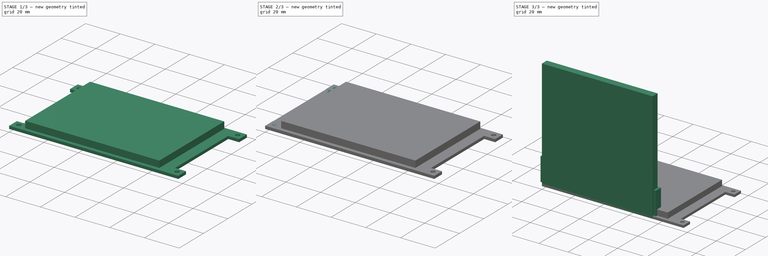
[diagram: build sequence overview — one tinted view per stage of 3, left to right]
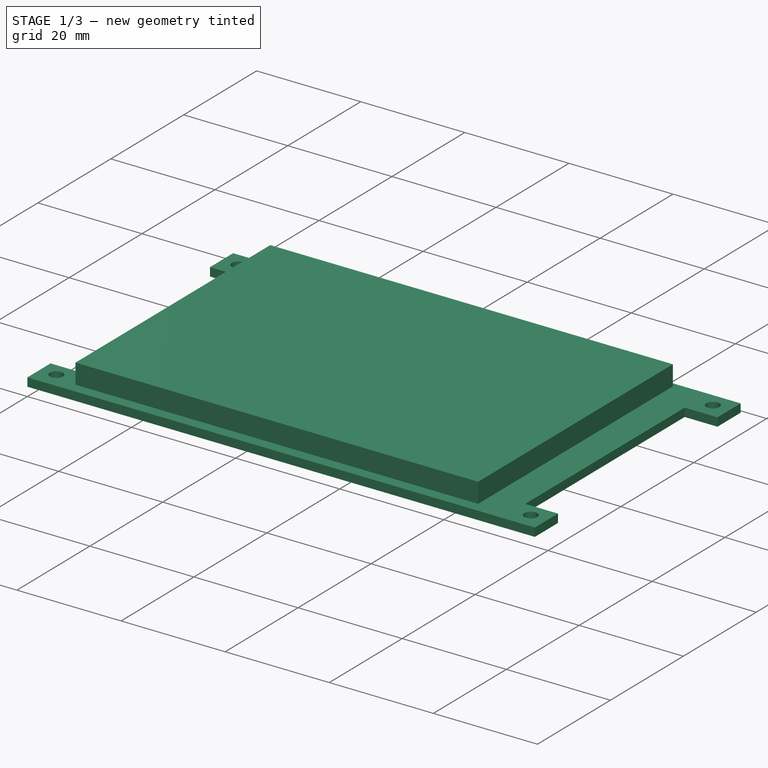
[diagram: stage 1 of 3 — iso view after this stage's code; geometry added in this stage tinted green]
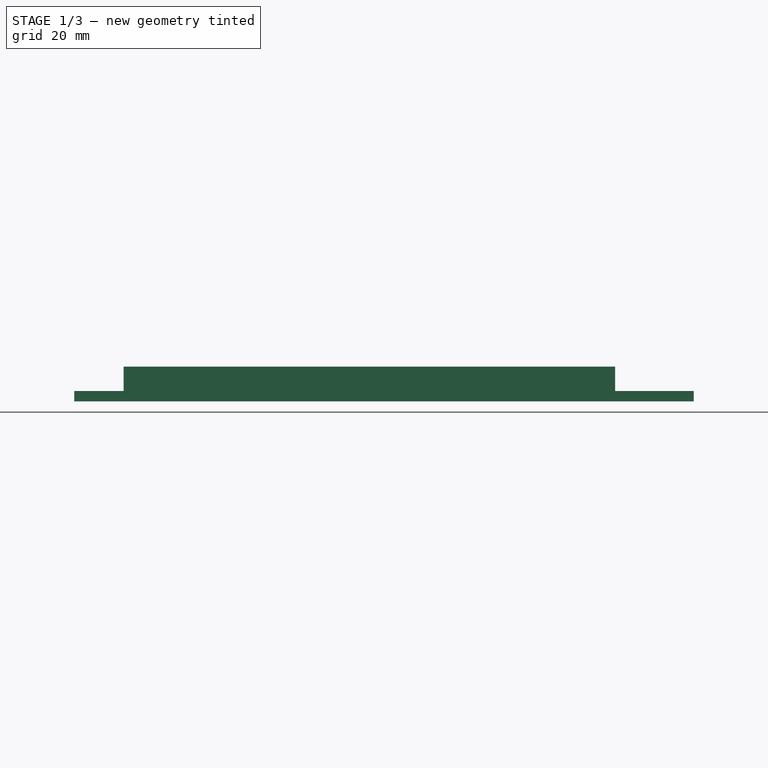
[diagram: stage 1 of 3 — front view after this stage's code; geometry added in this stage tinted green]
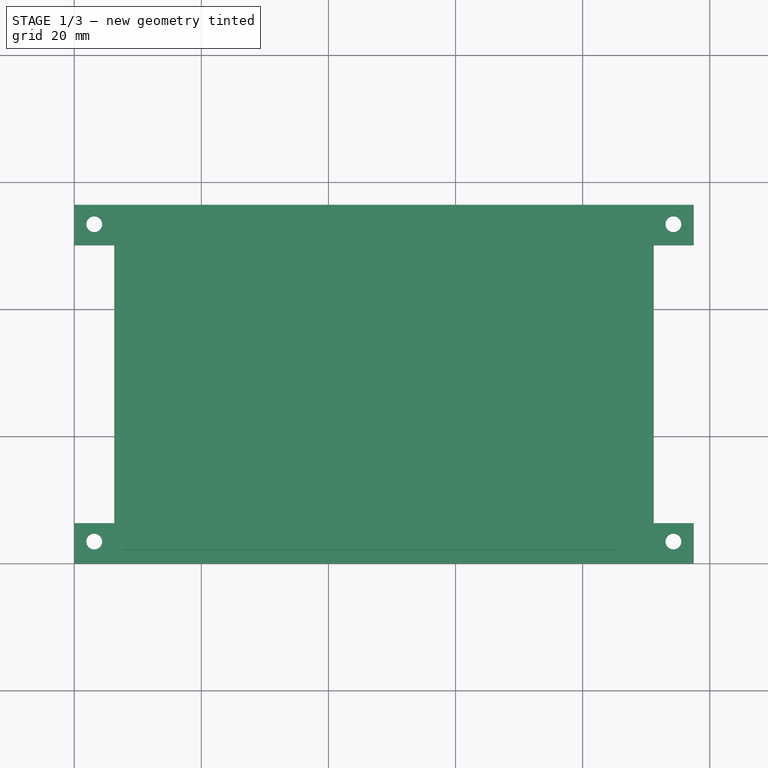
[diagram: stage 1 of 3 — top view after this stage's code; geometry added in this stage tinted green]
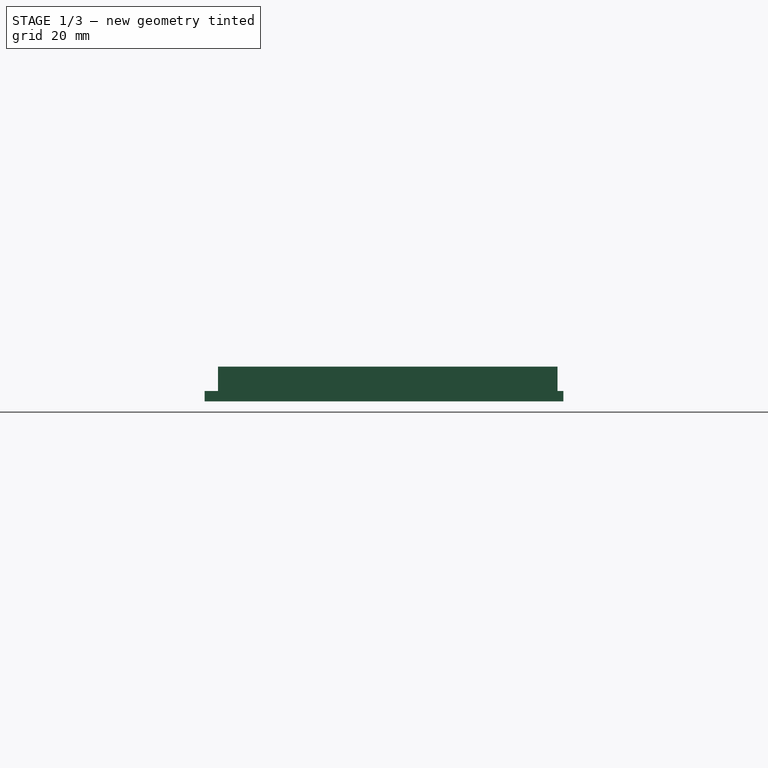
[diagram: stage 1 of 3 — right view after this stage's code; geometry added in this stage tinted green]
FCSTD DOCUMENT  (FreeCAD 0.16R6712 (Git))
Label: RasPiBox
License: All rights reserved
LicenseURL: http://en.wikipedia.org/wiki/All_rights_reserved
objects: Sketcher::SketchObject×4, PartDesign::Pad×4, Part::Box×1
note: 13 computed .brp shape members not serialized (recipe doc carries the construction recipe); baked Part::Feature solids carry a one-line shape summary decoded from their .brp

FEATURE [Sketcher::SketchObject] Sketch002  label="ScreenPCBsketch"
  sketch-geometry (16):
    g0: LineSegment StartX=0 StartY=0 StartZ=0 EndX=97.4852 EndY=0 EndZ=0
    g1: LineSegment StartX=97.4852 StartY=0 StartZ=0 EndX=97.4852 EndY=6.35282 EndZ=0
    g2: LineSegment StartX=97.4852 StartY=6.35282 StartZ=0 EndX=91.186 EndY=6.35282 EndZ=0
    g3: LineSegment StartX=91.186 StartY=6.35282 StartZ=0 EndX=91.186 EndY=50.0916 EndZ=0
    g4: LineSegment StartX=91.186 StartY=50.0916 StartZ=0 EndX=97.4852 EndY=50.0916 EndZ=0
    g5: LineSegment StartX=97.4852 StartY=50.0916 StartZ=0 EndX=97.4852 EndY=56.4444 EndZ=0
    g6: LineSegment StartX=97.4852 StartY=56.4444 StartZ=0 EndX=0 EndY=56.4444 EndZ=0
    g7: LineSegment StartX=0 StartY=56.4444 StartZ=0 EndX=0 EndY=50.0916 EndZ=0
    g8: LineSegment StartX=0 StartY=50.0916 StartZ=0 EndX=6.2992 EndY=50.0916 EndZ=0
    g9: LineSegment StartX=6.2992 StartY=50.0916 StartZ=0 EndX=6.2992 EndY=6.35282 EndZ=0
    g10: LineSegment StartX=6.2992 StartY=6.35282 StartZ=0 EndX=0 EndY=6.35282 EndZ=0
    g11: LineSegment StartX=0 StartY=6.35282 StartZ=0 EndX=0 EndY=0 EndZ=0
    g12: Circle CenterX=94.2848 CenterY=53.3964 CenterZ=0 NormalX=0 NormalY=0 NormalZ=1 Radius=1.2446
    g13: Circle CenterX=94.2848 CenterY=3.46004 CenterZ=0 NormalX=0 NormalY=0 NormalZ=1 Radius=1.2446
    g14: Circle CenterX=3.1496 CenterY=53.3964 CenterZ=0 NormalX=0 NormalY=0 NormalZ=1 Radius=1.2446
    g15: Circle CenterX=3.1496 CenterY=3.46004 CenterZ=0 NormalX=0 NormalY=0 NormalZ=1 Radius=1.2446
  constraints (49):
    c: Horizontal(g0)
    c: Coincident(g0,g1)
    c: Vertical(g1)
    c: Coincident(g1,g2)
    c: Horizontal(g2)
    c: Coincident(g2,g3)
    c: Vertical(g3)
    c: Coincident(g3,g4)
    c: Horizontal(g4)
    c: Coincident(g4,g5)
    c: Vertical(g5)
    c: Coincident(g5,g6)
    c: Horizontal(g6)
    c: Coincident(g6,g7)
    c: Vertical(g7)
    c: Coincident(g7,g8)
    c: Horizontal(g8)
    c: Coincident(g8,g9)
    c: Vertical(g9)
    c: Coincident(g9,g10)
    c: Horizontal(g10)
    c: Coincident(g10,g11)
    c: Coincident(g11,g0)
    c: Vertical(g11)
    c: Equal(g9,g3)
    c: Equal(g5,g1)
    c: Equal(g1,g11)
    c: Equal(g11,g7)
    c: Distance(g3,g8) = 84.8868
    c: Distance(g5,g6) = 97.4852
    c: DistanceY(g0,g5) = 56.4444
    c: Equal(g0,g6)
    c: Equal(g10,g8)
    c: Equal(g8,g4)
    c: Equal(g4,g2)
    c: DistanceY(g1,g4) = 43.7388
    c: Coincident(g0,g-1)
    c: Radius(g12) = 1.2446
    c: Radius(g13) = 1.2446
    c: DistanceY(g13,g12) = 49.9364
    c: Distance(g12,g6) = 3.048
    c: Distance(g12,g5) = 3.2004
    c: Radius(g14) = 1.2446
    c: Radius(g15) = 1.2446
    c: DistanceY(g15,g13) = 0
    c: DistanceY(g12,g14) = 0
    c: DistanceX(g15,g14) = 0
    c: Distance(g14,g7) = 3.1496
    c: DistanceX(g13,g12) = 0
FEATURE [PartDesign::Pad] Pad002
  Length = 1.6256
  Length2 = 100
  Sketch = -> Sketch002
  Type = 0
FEATURE [Sketcher::SketchObject] Sketch003
  Placement = pos=(0,0,1.6256) rot=(0,0,1;0rad)
  Support = -> Pad002 [Face18]
  sketch-geometry (4):
    g0: LineSegment StartX=7.7724 StartY=2.1082 StartZ=0 EndX=85.1154 EndY=2.1082 EndZ=0
    g1: LineSegment StartX=85.1154 StartY=2.1082 StartZ=0 EndX=85.1154 EndY=55.5244 EndZ=0
    g2: LineSegment StartX=85.1154 StartY=55.5244 StartZ=0 EndX=7.7724 EndY=55.5244 EndZ=0
    g3: LineSegment StartX=7.7724 StartY=55.5244 StartZ=0 EndX=7.7724 EndY=2.1082 EndZ=0
  constraints (12):
    c: Coincident(g0,g1)
    c: Coincident(g1,g2)
    c: Coincident(g2,g3)
    c: Coincident(g3,g0)
    c: Horizontal(g0)
    c: Horizontal(g2)
    c: Vertical(g1)
    c: Vertical(g3)
    c: DistanceX(g2,g1) = 77.343
    c: DistanceY(g0,g1) = 53.4162
    c: DistanceX(g-1,g0) = 85.1154
    c: DistanceY(g-1,g1) = 55.5244
FEATURE [PartDesign::Pad] Pad003  label="Screen"
  Length = 3.8354
  Length2 = 100
  Sketch = -> Sketch003
  Type = 0
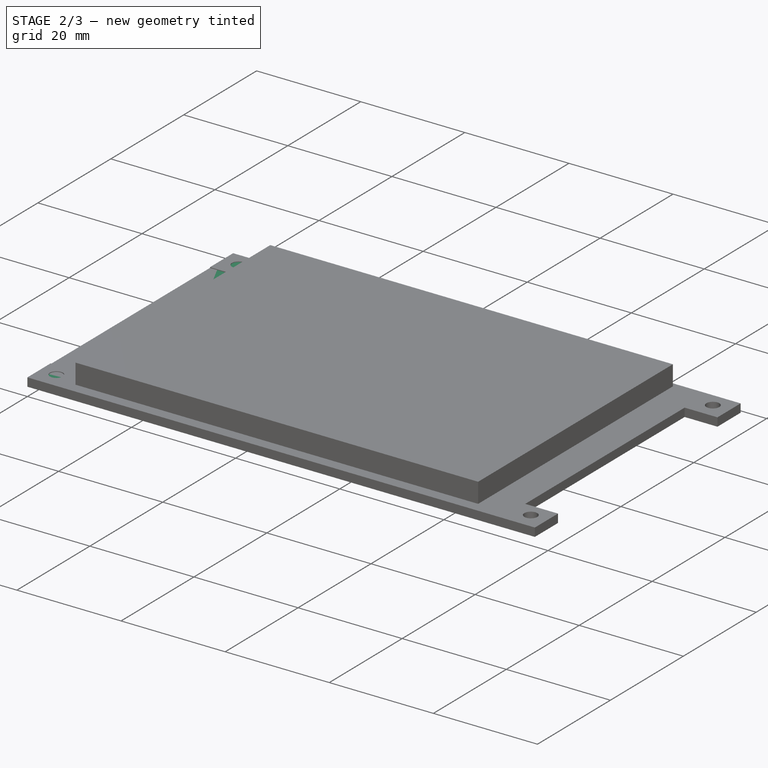
[diagram: stage 2 of 3 — iso view after this stage's code; geometry added in this stage tinted green]
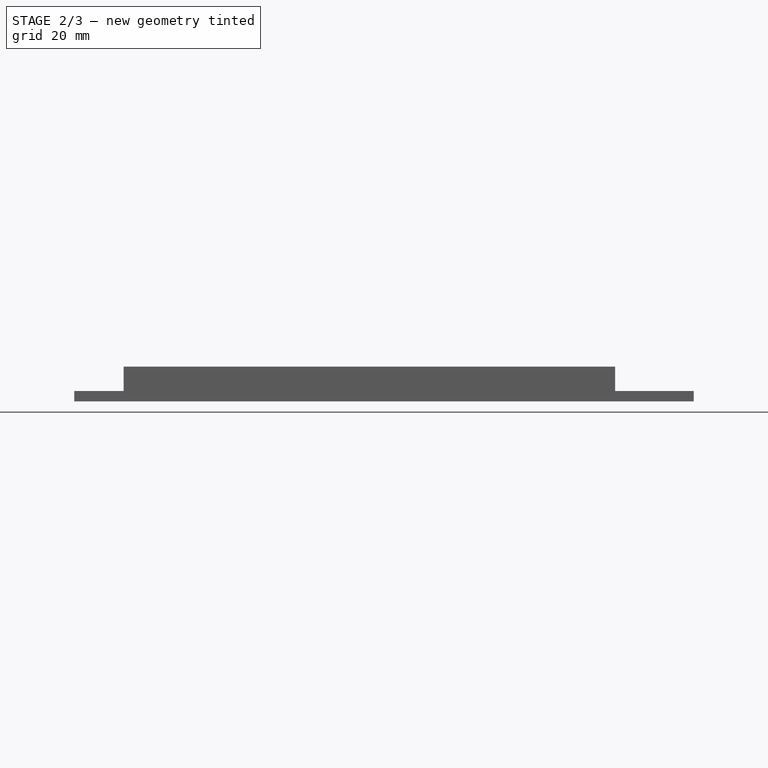
[diagram: stage 2 of 3 — front view after this stage's code; geometry added in this stage tinted green]
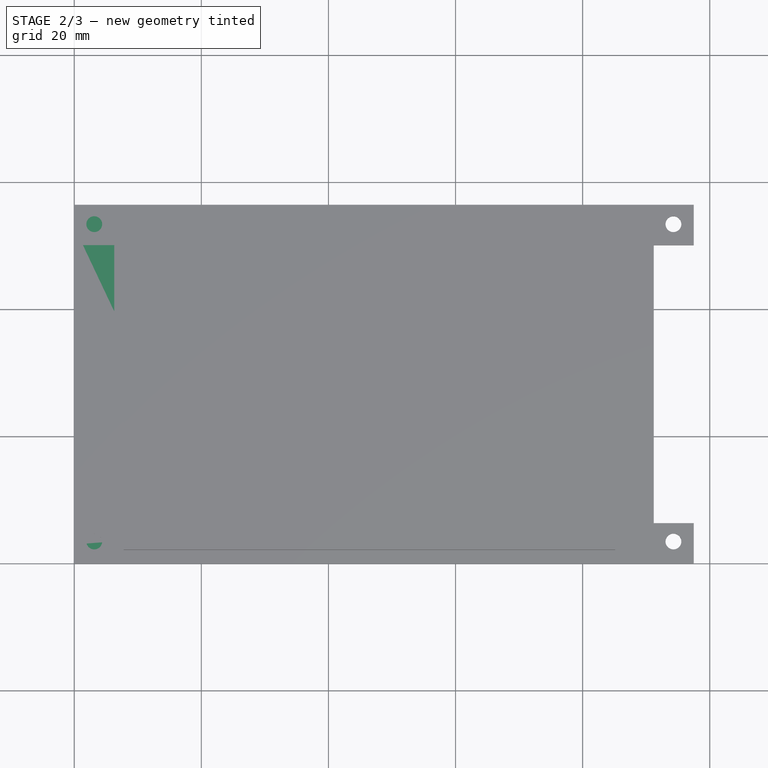
[diagram: stage 2 of 3 — top view after this stage's code; geometry added in this stage tinted green]
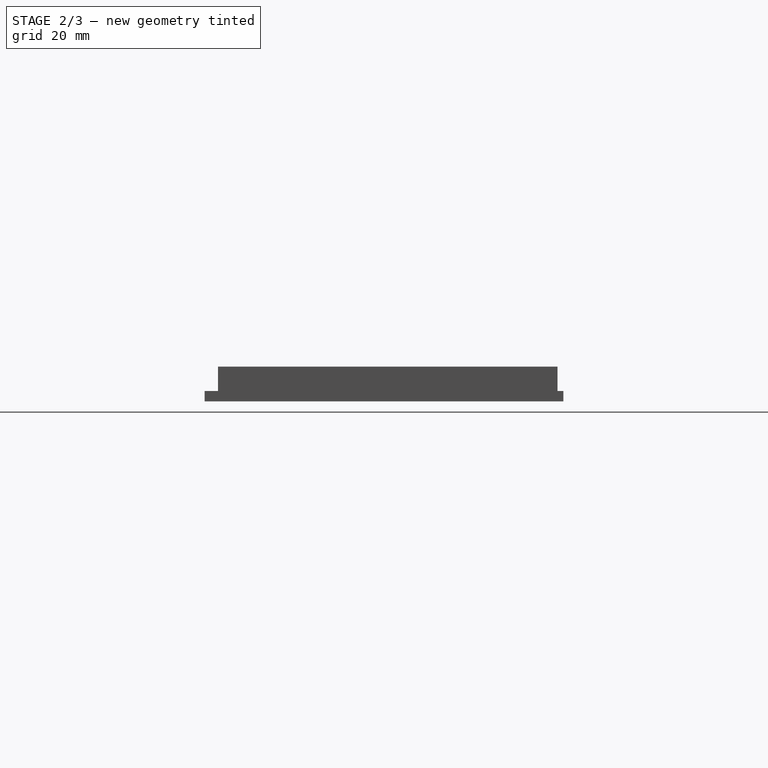
[diagram: stage 2 of 3 — right view after this stage's code; geometry added in this stage tinted green]
FEATURE [Sketcher::SketchObject] Sketch  label="PiSketch"
  sketch-geometry (12):
    g0: LineSegment StartX=3 StartY=0 StartZ=0 EndX=82 EndY=0 EndZ=0
    g1: LineSegment StartX=85 StartY=3 StartZ=0 EndX=85 EndY=53 EndZ=0
    g2: LineSegment StartX=82 StartY=56 StartZ=0 EndX=3 EndY=56 EndZ=0
    g3: LineSegment StartX=0 StartY=53 StartZ=0 EndX=0 EndY=3 EndZ=0
    g4: Circle CenterX=23.5 CenterY=52.5 CenterZ=0 NormalX=0 NormalY=0 NormalZ=1 Radius=1.375
    g5: Circle CenterX=23.5 CenterY=3.5 CenterZ=0 NormalX=0 NormalY=0 NormalZ=1 Radius=1.375
    g6: Circle CenterX=81.5 CenterY=3.5 CenterZ=0 NormalX=0 NormalY=0 NormalZ=1 Radius=1.375
    g7: Circle CenterX=81.5 CenterY=52.5 CenterZ=0 NormalX=0 NormalY=0 NormalZ=1 Radius=1.375
    g8: ArcOfCircle CenterX=3 CenterY=53 CenterZ=0 NormalX=0 NormalY=0 NormalZ=1 Radius=3 StartAngle=1.5708 EndAngle=3.14159
    g9: ArcOfCircle CenterX=3 CenterY=3 CenterZ=0 NormalX=0 NormalY=0 NormalZ=1 Radius=3 StartAngle=3.14159 EndAngle=4.71239
    g10: ArcOfCircle CenterX=82 CenterY=3 CenterZ=0 NormalX=0 NormalY=0 NormalZ=1 Radius=3 StartAngle=4.71239 EndAngle=6.28319
    g11: ArcOfCircle CenterX=82 CenterY=53 CenterZ=0 NormalX=0 NormalY=0 NormalZ=1 Radius=3 StartAngle=0 EndAngle=1.5708
  constraints (33):
    c: Horizontal(g0)
    c: Horizontal(g2)
    c: Vertical(g1)
    c: Vertical(g3)
    c: Tangent(g2,g8) = -1.5708
    c: Tangent(g3,g8) = -1.5708
    c: Tangent(g3,g9) = -1.5708
    c: Tangent(g0,g10) = -1.5708
    c: Tangent(g1,g10) = -1.5708
    c: Tangent(g1,g11) = -1.5708
    c: Tangent(g2,g11) = -1.5708
    c: Radius(g9) = 3
    c: PointOnObject(g0,g-1)
    c: PointOnObject(g3,g-2)
    c: Radius(g8) = 3
    c: Radius(g11) = 3
    c: Radius(g10) = 3
    c: Radius(g4) = 1.375
    c: Radius(g7) = 1.375
    c: Radius(g5) = 1.375
    c: Radius(g6) = 1.375
    c: DistanceX(g3,g1) = 85
    c: DistanceY(g0,g2) = 56
    c: Distance(g7,g1) = 3.5
    c: Distance(g6,g1) = 3.5
    c: Distance(g6,g0) = 3.5
    c: Distance(g5,g0) = 3.5
    c: Distance(g5,g6) = 58
    c: Distance(g4,g7) = 58
    c: Distance(g7,g2) = 3.5
    c: Distance(g4,g2) = 3.5
    c: Coincident(g9,g0)
    c: DistanceX(g-2,g0) = 3
FEATURE [PartDesign::Pad] Pad  label="PiPad"
  Length = 1.5
  Length2 = 100
  Sketch = -> Sketch
  Type = 0
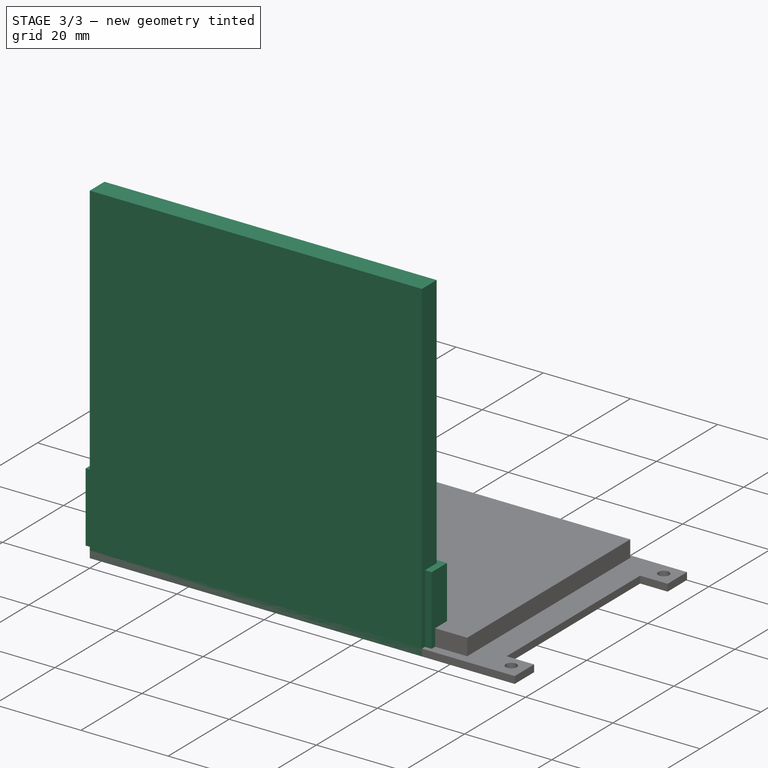
[diagram: stage 3 of 3 — iso view after this stage's code; geometry added in this stage tinted green]
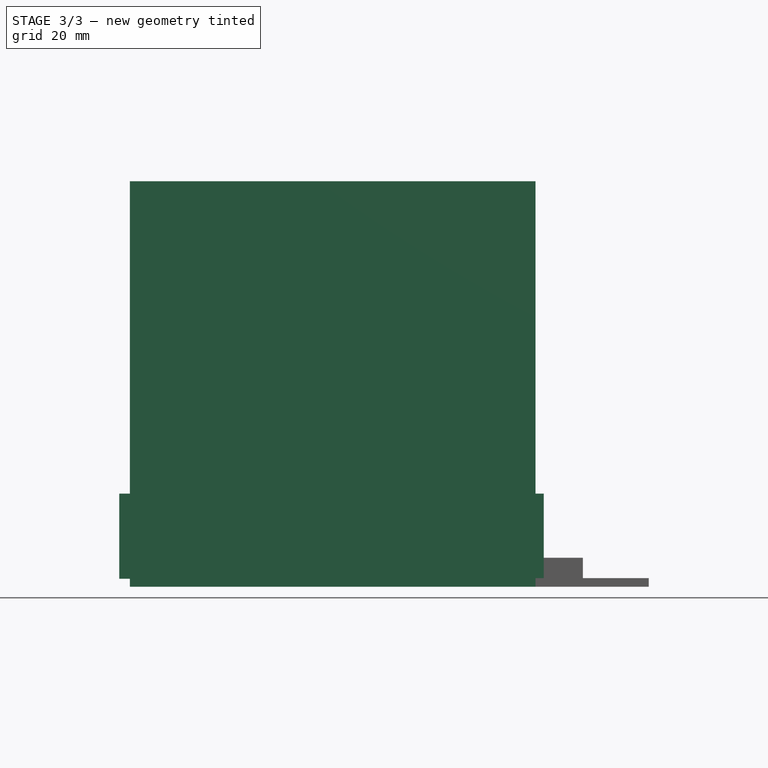
[diagram: stage 3 of 3 — front view after this stage's code; geometry added in this stage tinted green]
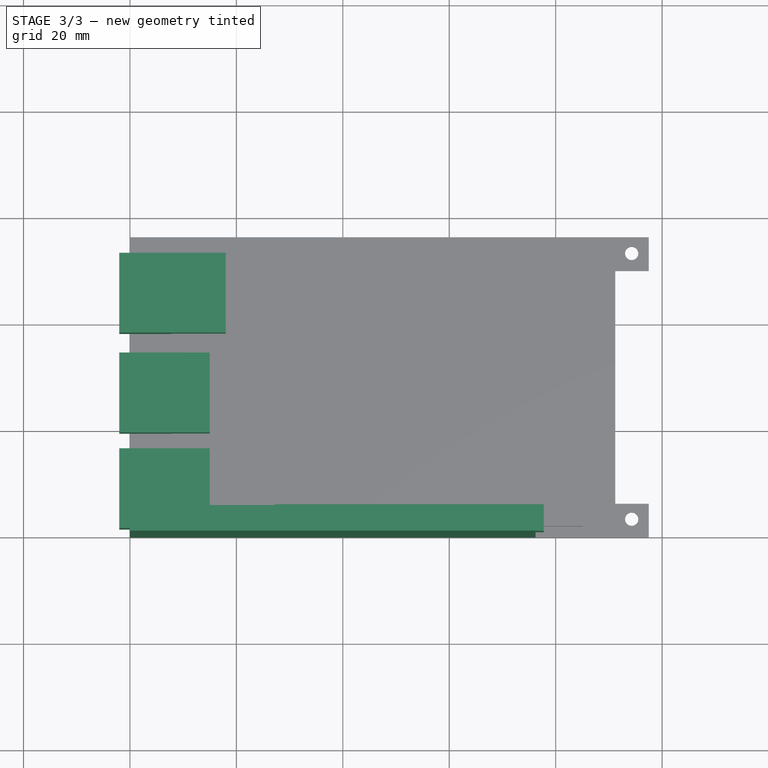
[diagram: stage 3 of 3 — top view after this stage's code; geometry added in this stage tinted green]
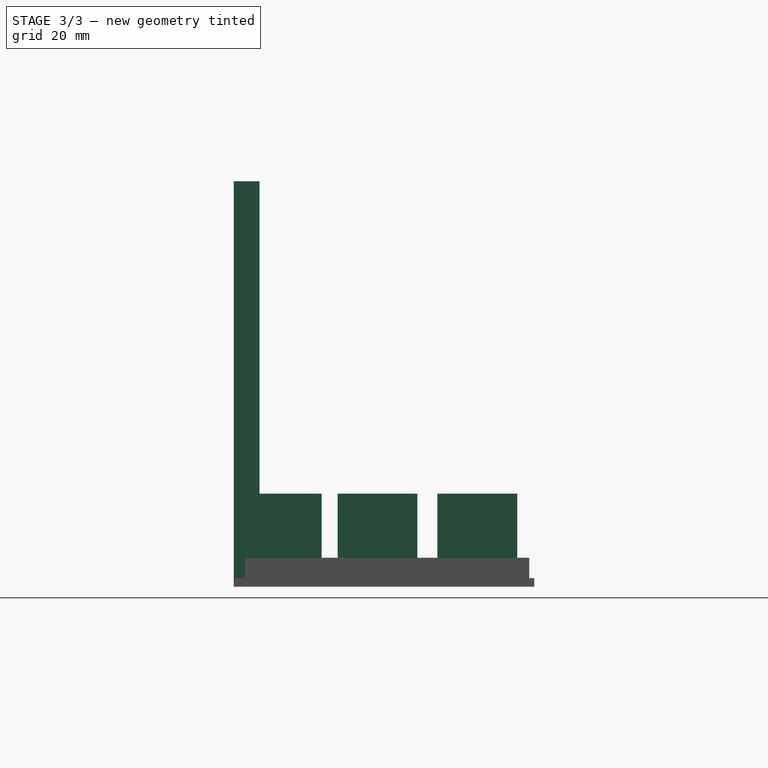
[diagram: stage 3 of 3 — right view after this stage's code; geometry added in this stage tinted green]
FEATURE [Part::Box] Box  label="Cube"
  Height = 76.2
  Length = 76.2
  Width = 4.826
  expr: Width = 0.19"
FEATURE [Sketcher::SketchObject] Sketch001  label="PiPortsSketch"
  Placement = pos=(0,0,1.5) rot=(0,0,1;0rad)
  Support = -> Pad [Face14]
  sketch-geometry (21):
    g0: LineSegment StartX=-2 StartY=38.25 StartZ=0 EndX=18 EndY=38.25 EndZ=0
    g1: LineSegment StartX=18 StartY=38.25 StartZ=0 EndX=18 EndY=53.25 EndZ=0
    g2: LineSegment StartX=18 StartY=53.25 StartZ=0 EndX=-2 EndY=53.25 EndZ=0
    g3: LineSegment StartX=-2 StartY=53.25 StartZ=0 EndX=-2 EndY=38.25 EndZ=0
    g4: GeomPoint [constr] X=18 Y=45.75 Z=0
    g5: LineSegment StartX=-2 StartY=19.5 StartZ=0 EndX=15 EndY=19.5 EndZ=0
    g6: LineSegment StartX=15 StartY=19.5 StartZ=0 EndX=15 EndY=34.5 EndZ=0
    g7: LineSegment StartX=15 StartY=34.5 StartZ=0 EndX=-2 EndY=34.5 EndZ=0
    g8: LineSegment StartX=-2 StartY=34.5 StartZ=0 EndX=-2 EndY=19.5 EndZ=0
    g9: GeomPoint [constr] X=15 Y=27 Z=0
    g10: LineSegment StartX=-2 StartY=1.5 StartZ=0 EndX=15 EndY=1.5 EndZ=0
    g11: LineSegment StartX=15 StartY=1.5 StartZ=0 EndX=15 EndY=16.5 EndZ=0
    g12: LineSegment StartX=15 StartY=16.5 StartZ=0 EndX=-2 EndY=16.5 EndZ=0
    g13: LineSegment StartX=-2 StartY=16.5 StartZ=0 EndX=-2 EndY=1.5 EndZ=0
    g14: GeomPoint [constr] X=15 Y=9 Z=0
    g15: LineSegment StartX=27.25 StartY=1 StartZ=0 EndX=77.75 EndY=1 EndZ=0
    g16: LineSegment StartX=77.75 StartY=1 StartZ=0 EndX=77.75 EndY=6 EndZ=0
    g17: LineSegment StartX=77.75 StartY=6 StartZ=0 EndX=27.25 EndY=6 EndZ=0
    g18: LineSegment StartX=27.25 StartY=6 StartZ=0 EndX=27.25 EndY=1 EndZ=0
    g19: GeomPoint [constr] X=52.5 Y=6 Z=0
    g20: GeomPoint [constr] X=77.75 Y=3.5 Z=0
  constraints (58):
    c: Coincident(g0,g1)
    c: Coincident(g1,g2)
    c: Coincident(g2,g3)
    c: Coincident(g3,g0)
    c: Horizontal(g0)
    c: Horizontal(g2)
    c: Vertical(g1)
    c: Vertical(g3)
    c: PointOnObject(g4,g1)
    c: Symmetric(g0,g1,g4)
    c: DistanceX(g2,g1) = 20
    c: DistanceY(g0,g2) = 15
    c: Coincident(g5,g6)
    c: Coincident(g6,g7)
    c: Coincident(g7,g8)
    c: Coincident(g8,g5)
    c: Horizontal(g5)
    c: Horizontal(g7)
    c: Vertical(g6)
    c: Vertical(g8)
    c: DistanceX(g7,g6) = 17
    c: DistanceX(g2,g5) = 0
    c: DistanceX(g0,g-1) = 2
    c: DistanceY(g5,g6) = 15
    c: PointOnObject(g9,g6)
    c: Symmetric(g5,g6,g9)
    c: Coincident(g10,g11)
    c: Coincident(g11,g12)
    c: Coincident(g12,g13)
    c: Coincident(g13,g10)
    c: Horizontal(g10)
    c: Horizontal(g12)
    c: Vertical(g11)
    c: Vertical(g13)
    c: DistanceX(g12,g11) = 17
    c: DistanceY(g10,g12) = 15
    c: DistanceX(g10,g7) = 0
    c: PointOnObject(g14,g11)
    c: Symmetric(g10,g11,g14)
    c: DistanceY(g-1,g14) = 9
    c: DistanceY(g-1,g9) = 27
    c: DistanceY(g-1,g4) = 45.75
    c: Coincident(g15,g16)
    c: Coincident(g16,g17)
    c: Coincident(g17,g18)
    c: Coincident(g18,g15)
    c: Horizontal(g15)
    c: Horizontal(g17)
    c: Vertical(g16)
    c: Vertical(g18)
    c: DistanceY(g15,g16) = 5
    c: DistanceX(g17,g16) = 50.5
    c: PointOnObject(g19,g17)
    c: Symmetric(g17,g16,g19)
    c: DistanceX(g-2,g19) = 52.5
    c: PointOnObject(g20,g16)
    c: Symmetric(g15,g16,g20)
    c: DistanceY(g-1,g20) = 3.5
FEATURE [PartDesign::Pad] Pad001  label="RasPi"
  Length = 16
  Length2 = 100
  Sketch = -> Sketch001
  Type = 0
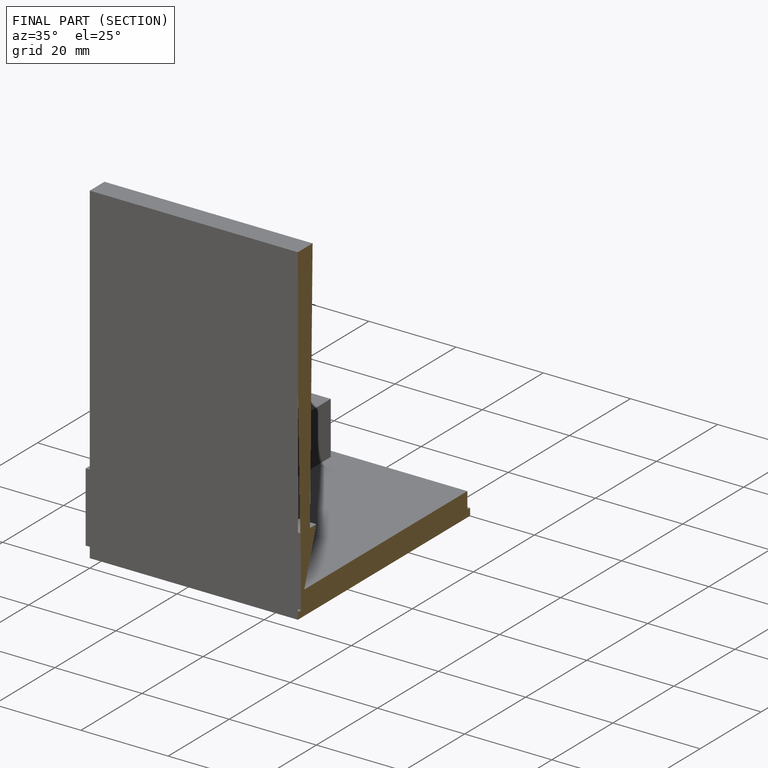
[diagram: finished part — half-section view (interior)]
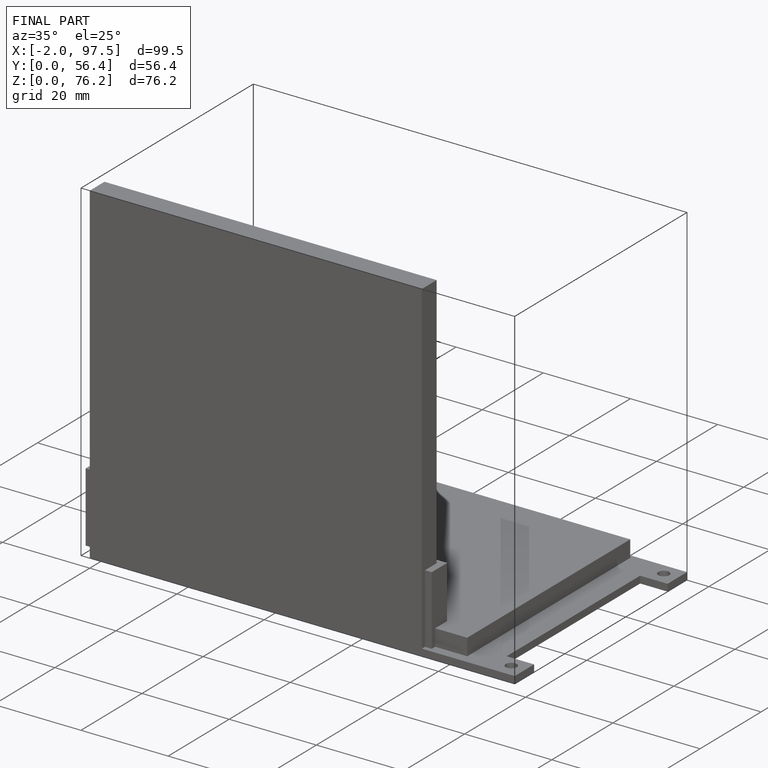
[diagram: finished part — iso view with bounding-box wireframe]
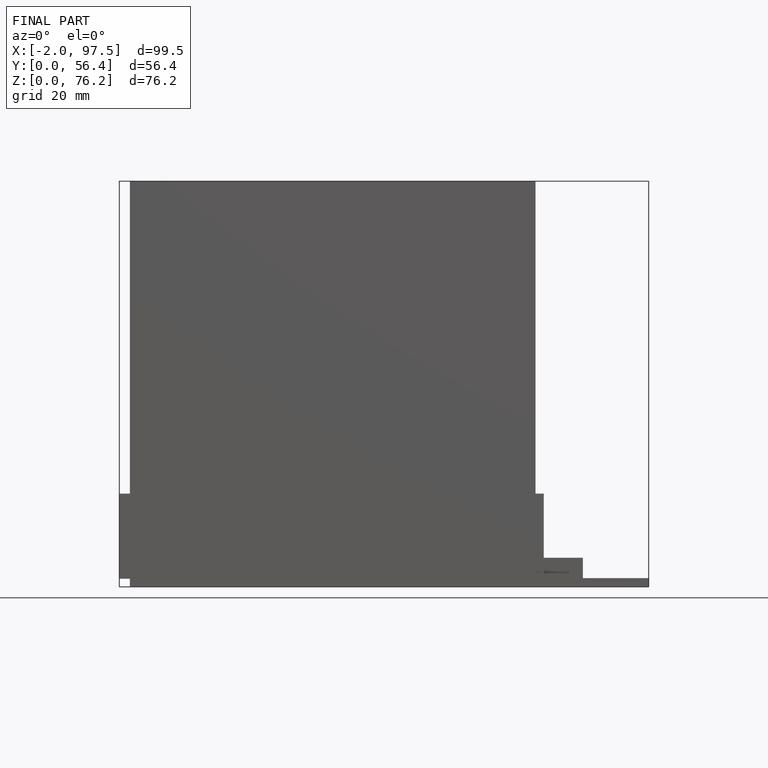
[diagram: finished part — front view with bounding-box wireframe]
